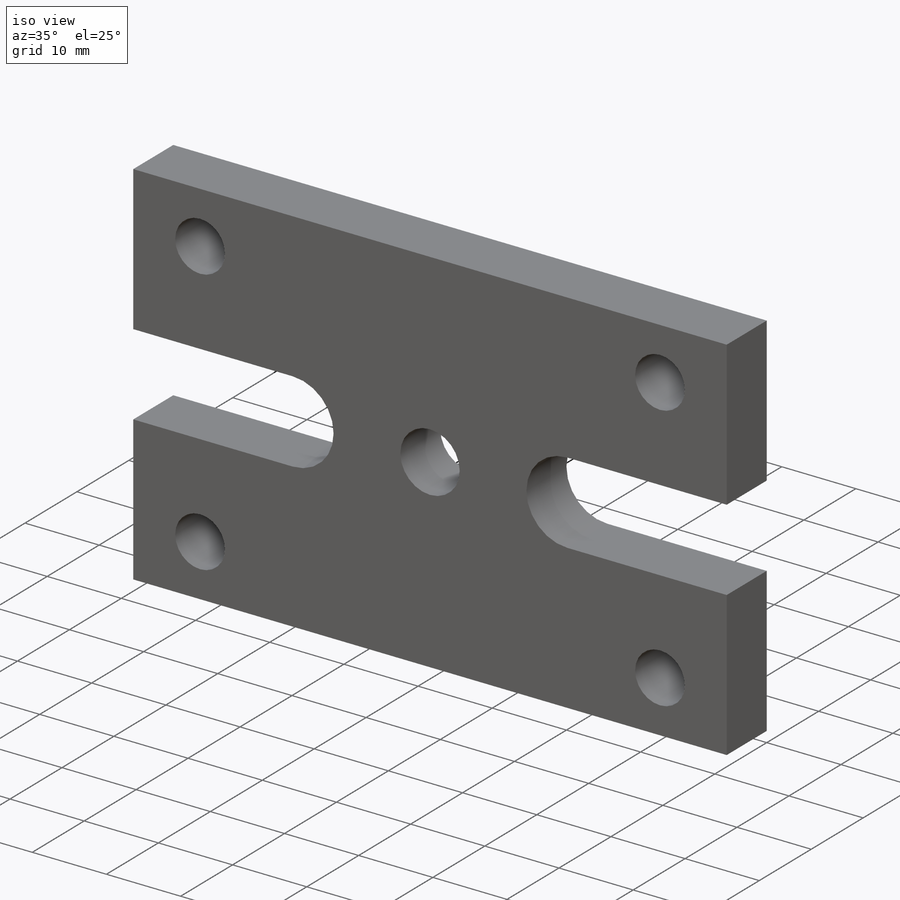
[diagram: iso view]
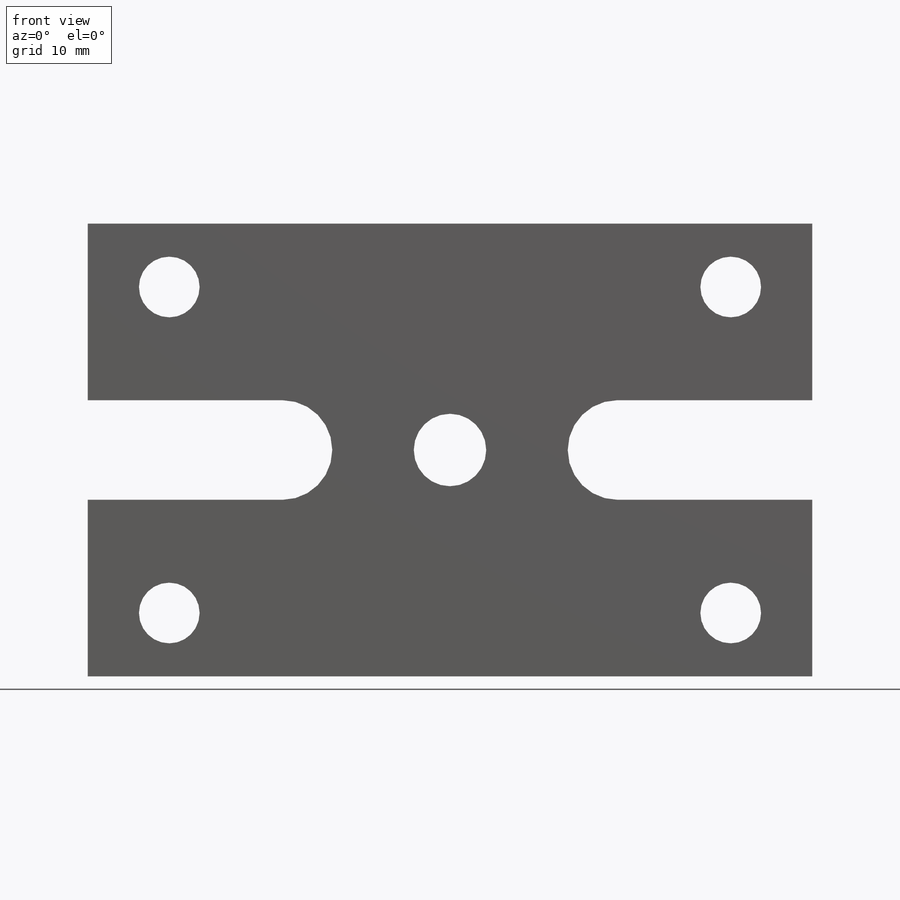
[diagram: front view]
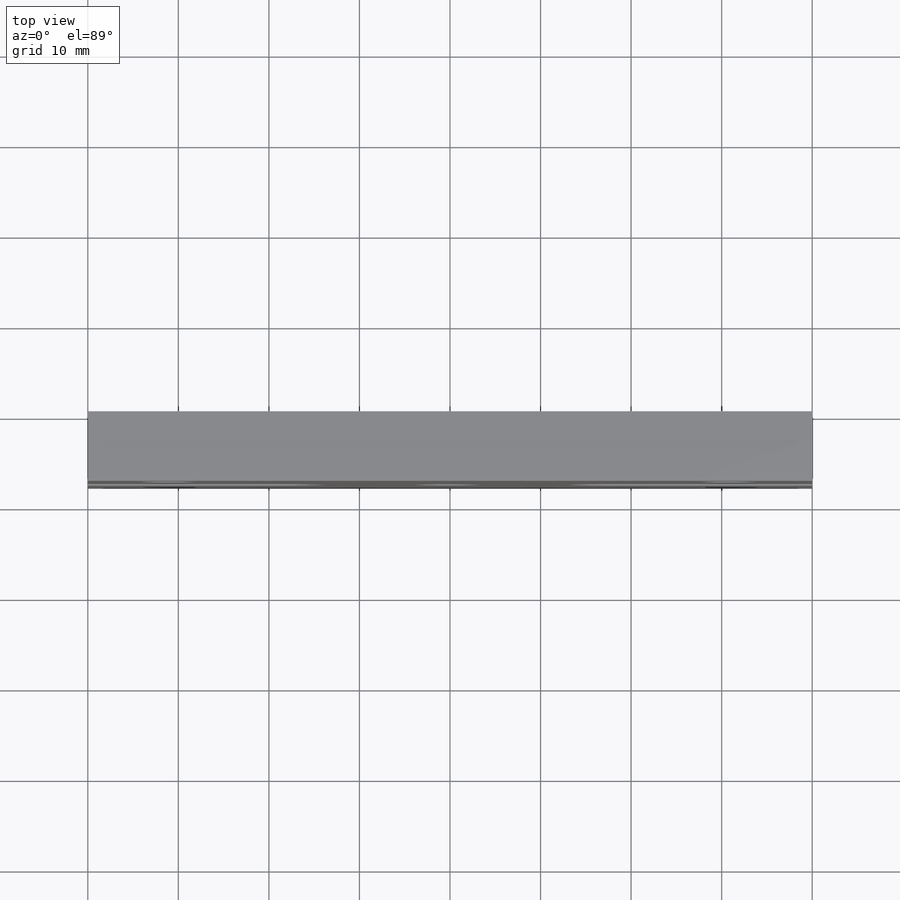
[diagram: top view]
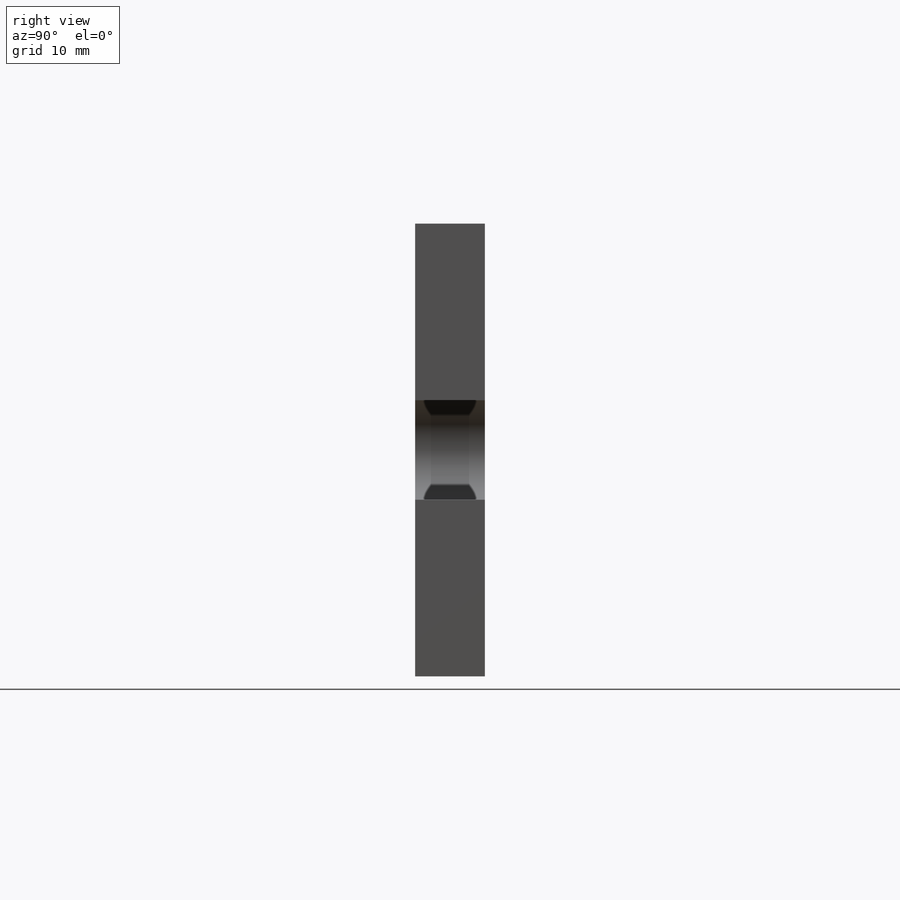
[diagram: right view]
SOLIDWORKS PART (.sldprt)
format: sldprt  version: not decoded by parser v0  size: 222,208 bytes
history: native  units: mm
features: sketch x5, hole x2, material x1, extrude x1 + 1 further entry (+13 scaffold rows collapsed)
feature tree (23):
  scaffold x13  (default folders/planes/origin — collapsed)
  material  "304 SSTL"
  "Origin"  ID=-1
  sketch  "Sketch1"  dims[D1=80.0mm D2=18.5mm D3=25.0mm D4=25.0mm D5=11.0mm]
  extrude  "Boss-Extrude1"  Depth=7.7mm
  hole  "Ø6.7 (6.7) Diameter Hole1"  Diameter=6.7mm Depth=7.7mm
  sketch  "Sketch3"  dims[D1=36.0mm D2=62.0mm]
  sketch  "Sketch4"  dims[hole-wizard template sketch: 59 standard entries collapsed; hole parameters kept: c18.Thru Hole Dia.=6.7mm c18.Thru Hole Depth=7.7mm]
  hole  "Ø8.0 (8) Diameter Hole1"  Diameter=8mm Depth=7.7mm
  sketch  "Sketch6"
  sketch  "Sketch7"  dims[hole-wizard template sketch: 60 standard entries collapsed; hole parameters kept: c18.Thru Hole Depth=7.7mm]
decode coverage: 7 of 8 modeling features carry decoded parameters; 1 rows unclassified (native names shown)
note: ~ marks probable driven/reference dimensions
note: suppression state not decoded; provenance and decode notes live in map.json
